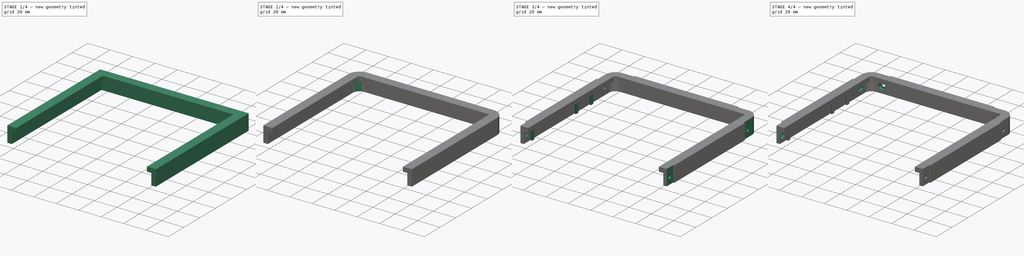
[diagram: build sequence overview — one tinted view per stage of 4, left to right]
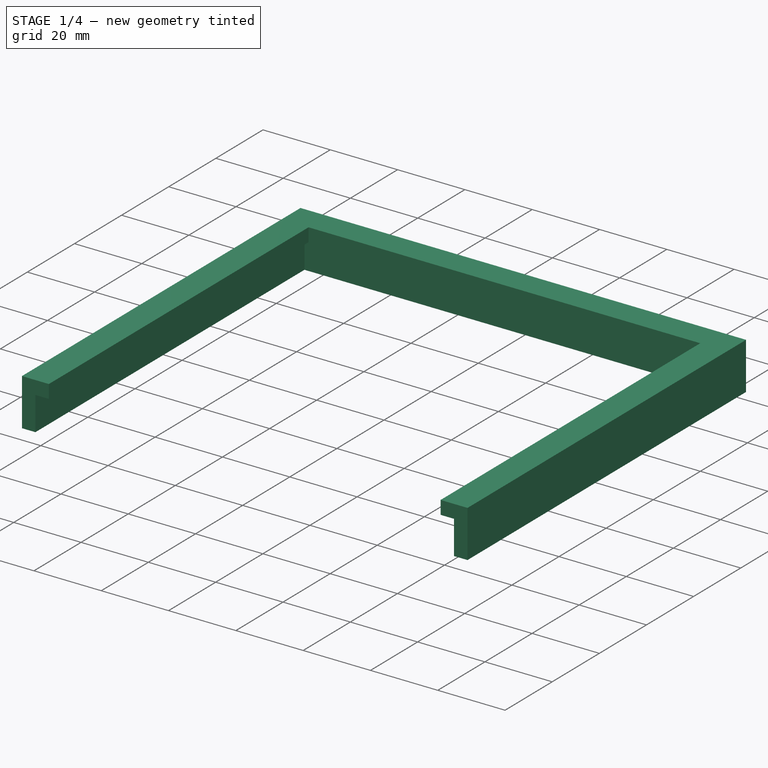
[diagram: stage 1 of 4 — iso view after this stage's code; geometry added in this stage tinted green]
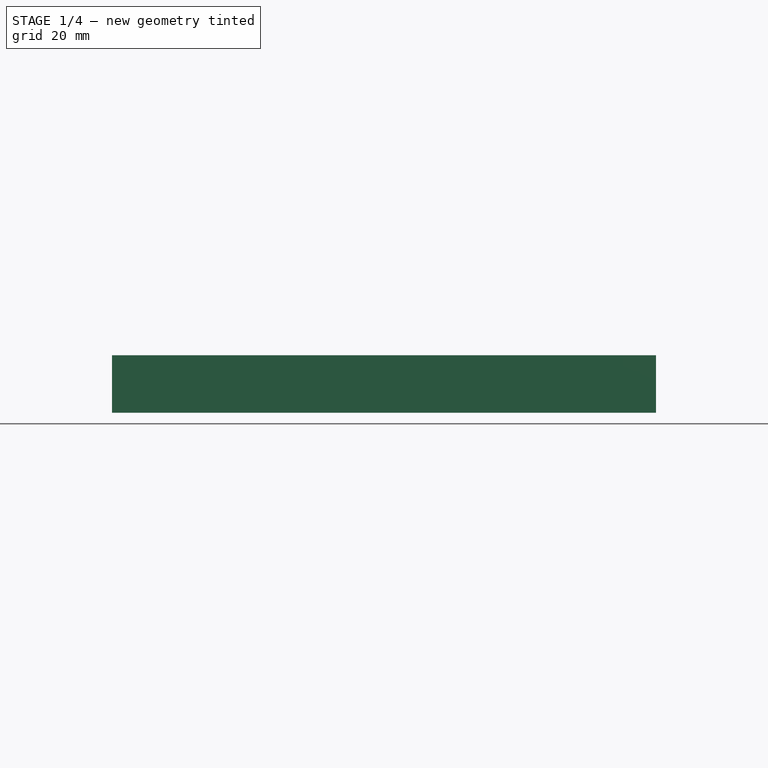
[diagram: stage 1 of 4 — front view after this stage's code; geometry added in this stage tinted green]
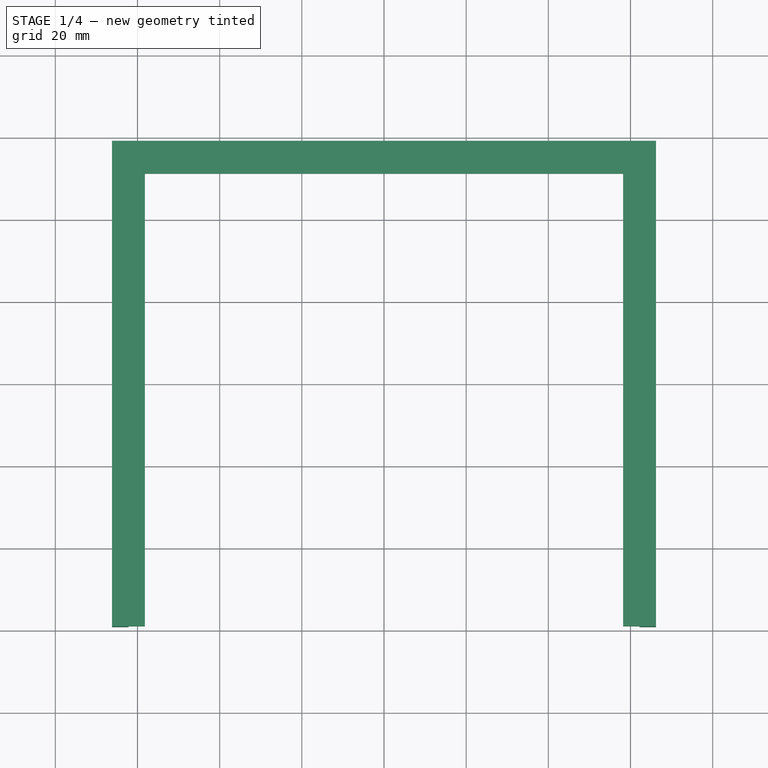
[diagram: stage 1 of 4 — top view after this stage's code; geometry added in this stage tinted green]
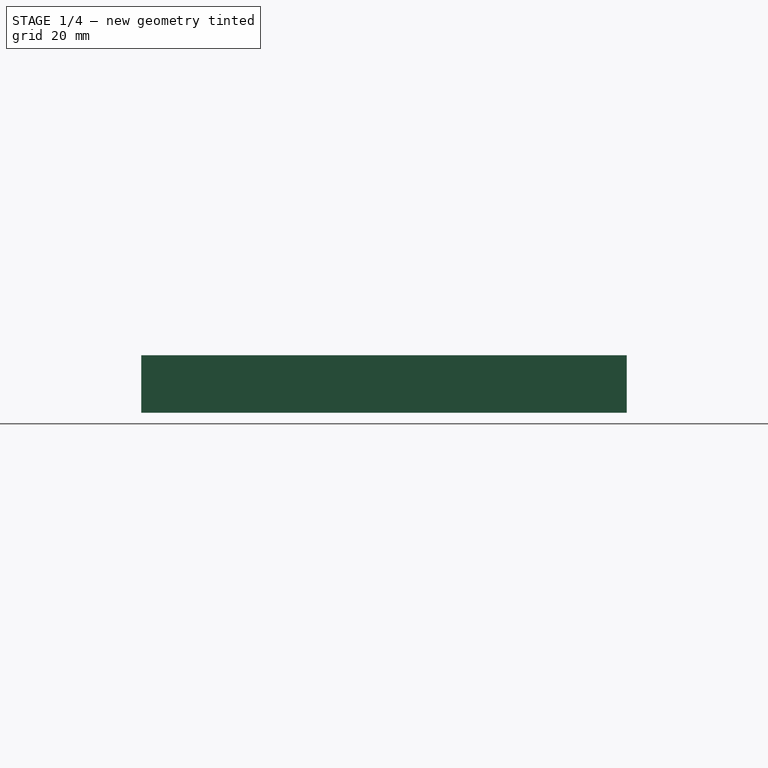
[diagram: stage 1 of 4 — right view after this stage's code; geometry added in this stage tinted green]
FCSTD DOCUMENT  (FreeCAD 0.18R16131 (Git))
Label: TopLockHalf
License: All rights reserved
LicenseURL: http://en.wikipedia.org/wiki/All_rights_reserved
objects: Sketcher::SketchObject×10, PartDesign::Pocket×8, PartDesign::Fillet×3, PartDesign::Pad×2, PartDesign::Body×1, App::Part×1
note: 34 computed .brp shape members not serialized (recipe doc carries the construction recipe); baked Part::Feature solids carry a one-line shape summary decoded from their .brp

FEATURE [Sketcher::SketchObject] Sketch
  MapMode = 5
  Support = -> [XY_Plane001]
  sketch-geometry (4):
    g0: LineSegment StartX=-66.2 StartY=59.1 StartZ=0 EndX=66.2 EndY=59.1 EndZ=0
    g1: LineSegment StartX=66.2 StartY=59.1 StartZ=0 EndX=66.2 EndY=-59.1 EndZ=0
    g2: LineSegment StartX=66.2 StartY=-59.1 StartZ=0 EndX=-66.2 EndY=-59.1 EndZ=0
    g3: LineSegment StartX=-66.2 StartY=-59.1 StartZ=0 EndX=-66.2 EndY=59.1 EndZ=0
  constraints (10):
    c: Coincident(g0,g1)
    c: Coincident(g1,g2)
    c: Coincident(g2,g3)
    c: Coincident(g3,g0)
    c: Horizontal(g2)
    c: Vertical(g1)
    c: Symmetric(g0,g2,g-1)
    c: Symmetric(g0,g0,g-2)
    c: Distance(g0) = 132.4
    c: Distance(g3) = 118.2
FEATURE [PartDesign::Pad] Pad
  Length = 4
  Length2 = 10
  Midplane = true
  Profile = -> Sketch
  Reversed = true
  Type = 4
FEATURE [Sketcher::SketchObject] Sketch001
  MapMode = 5
  Support = -> [XY_Plane001]
  sketch-geometry (4):
    g0: LineSegment StartX=-62.2 StartY=55.1 StartZ=0 EndX=62.2 EndY=55.1 EndZ=0
    g1: LineSegment StartX=62.2 StartY=55.1 StartZ=0 EndX=62.2 EndY=-59.1 EndZ=0
    g2: LineSegment StartX=62.2 StartY=-59.1 StartZ=0 EndX=-62.2 EndY=-59.1 EndZ=0
    g3: LineSegment StartX=-62.2 StartY=-59.1 StartZ=0 EndX=-62.2 EndY=55.1 EndZ=0
  constraints (11):
    c: Coincident(g0,g1)
    c: Coincident(g1,g2)
    c: Coincident(g2,g3)
    c: Coincident(g3,g0)
    c: Horizontal(g2)
    c: Vertical(g1)
    c: Vertical(g3)
    c: Symmetric(g0,g0,g-2)
    c: Distance(g0) = 124.4
    c: Distance(g3) = 114.2
    c: DistanceY(g-1,g2) = -59.1
FEATURE [PartDesign::Pocket] Pocket
  BaseFeature = -> Pad
  Length = 5
  Length2 = 100
  Profile = -> Sketch001
  Type = 1
FEATURE [Sketcher::SketchObject] Sketch002
  MapMode = 5
  Support = -> [XY_Plane001]
  sketch-geometry (4):
    g0: LineSegment StartX=-58.2 StartY=51.1 StartZ=0 EndX=58.2 EndY=51.1 EndZ=0
    g1: LineSegment StartX=58.2 StartY=51.1 StartZ=0 EndX=58.2 EndY=-59.1 EndZ=0
    g2: LineSegment StartX=58.2 StartY=-59.1 StartZ=0 EndX=-58.2 EndY=-59.1 EndZ=0
    g3: LineSegment StartX=-58.2 StartY=-59.1 StartZ=0 EndX=-58.2 EndY=51.1 EndZ=0
  constraints (11):
    c: Coincident(g0,g1)
    c: Coincident(g1,g2)
    c: Coincident(g2,g3)
    c: Coincident(g3,g0)
    c: Horizontal(g2)
    c: Vertical(g1)
    c: Vertical(g3)
    c: Symmetric(g0,g0,g-2)
    c: DistanceY(g-1,g2) = -59.1
    c: Distance(g0) = 116.4
    c: Distance(g3) = 110.2
FEATURE [PartDesign::Pocket] Pocket001
  BaseFeature = -> Pocket
  Length = 5
  Length2 = 100
  Profile = -> Sketch002
  Reversed = true
  Type = 0
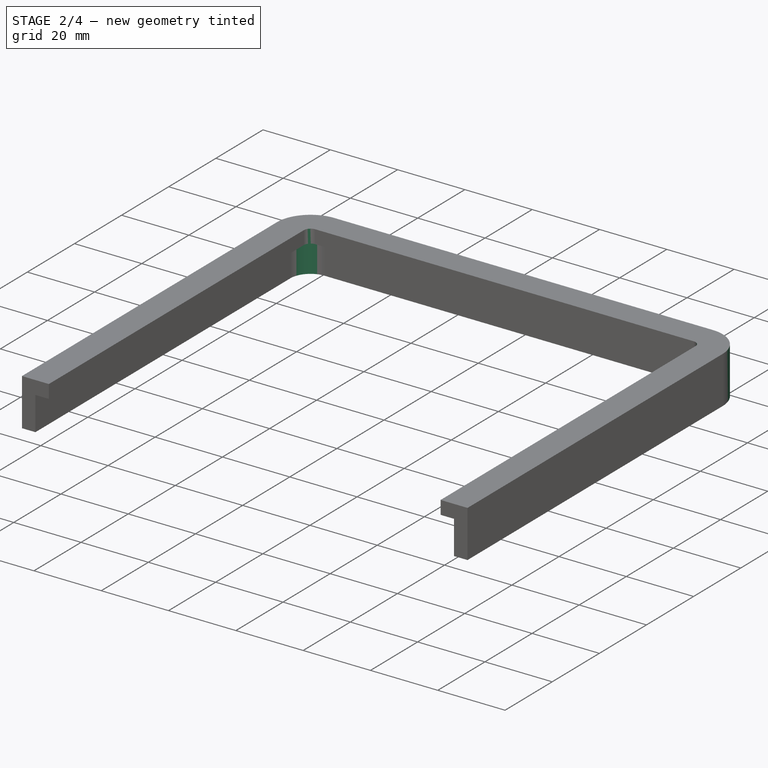
[diagram: stage 2 of 4 — iso view after this stage's code; geometry added in this stage tinted green]
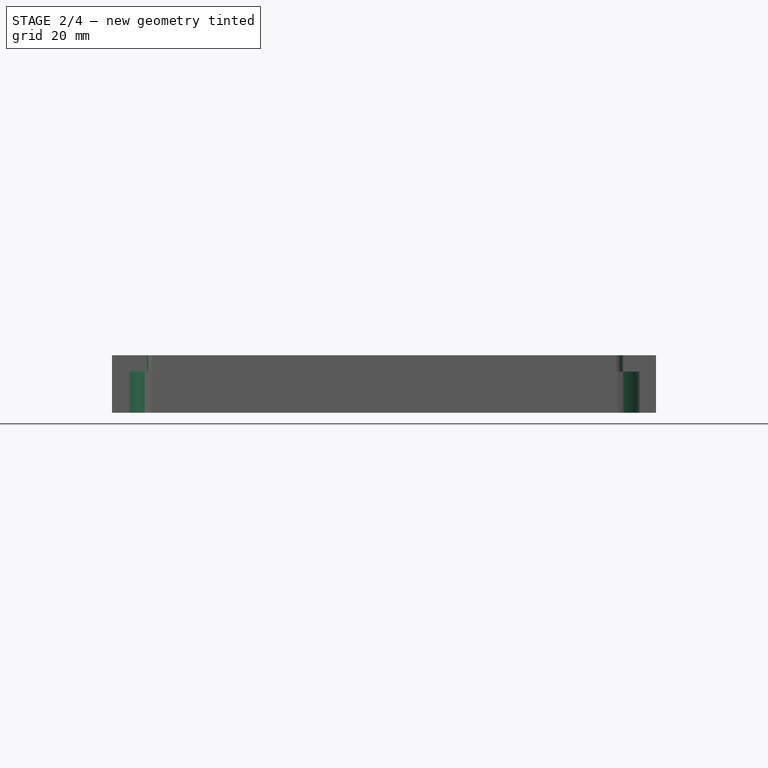
[diagram: stage 2 of 4 — front view after this stage's code; geometry added in this stage tinted green]
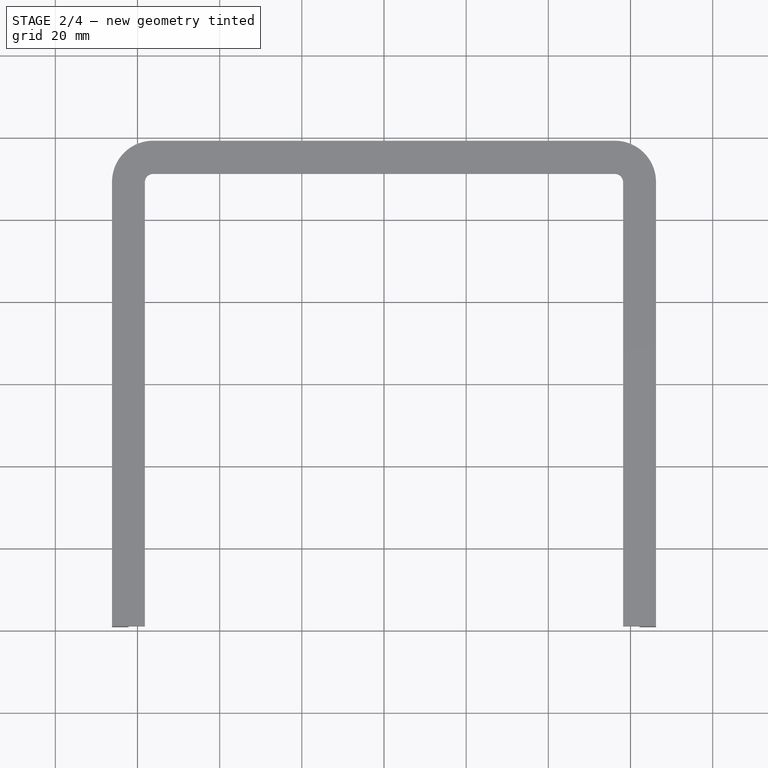
[diagram: stage 2 of 4 — top view after this stage's code; geometry added in this stage tinted green]
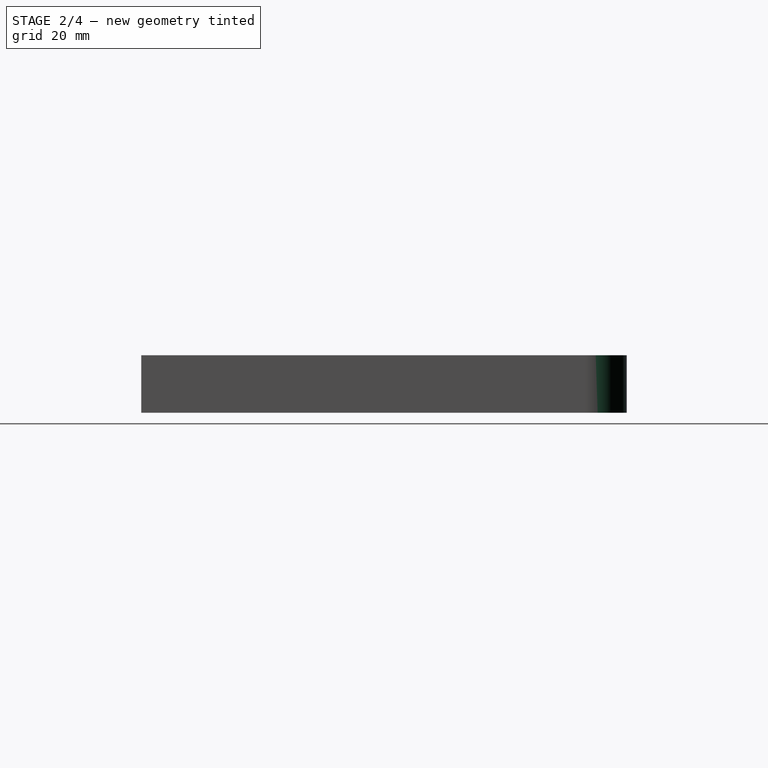
[diagram: stage 2 of 4 — right view after this stage's code; geometry added in this stage tinted green]
FEATURE [PartDesign::Fillet] Fillet
  Base = -> Pocket001 [Edge28,Edge30]
  BaseFeature = -> Pocket001
  Radius = 6
FEATURE [PartDesign::Fillet] Fillet001
  Base = -> Fillet [Edge22,Edge26]
  BaseFeature = -> Fillet
  Radius = 10
FEATURE [PartDesign::Fillet] Fillet002
  Base = -> Fillet001 [Edge45,Edge48]
  BaseFeature = -> Fillet001
  Radius = 2
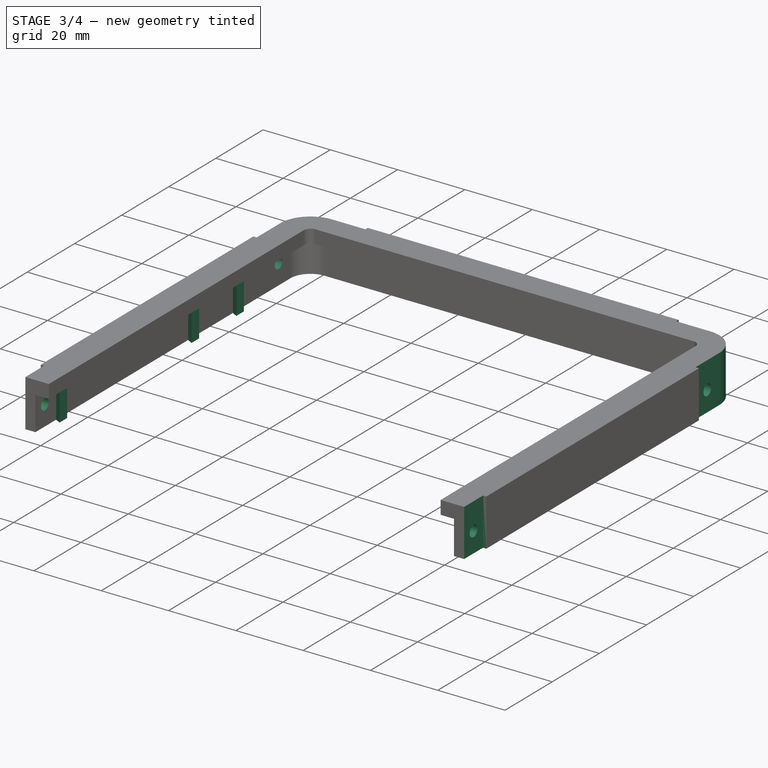
[diagram: stage 3 of 4 — iso view after this stage's code; geometry added in this stage tinted green]
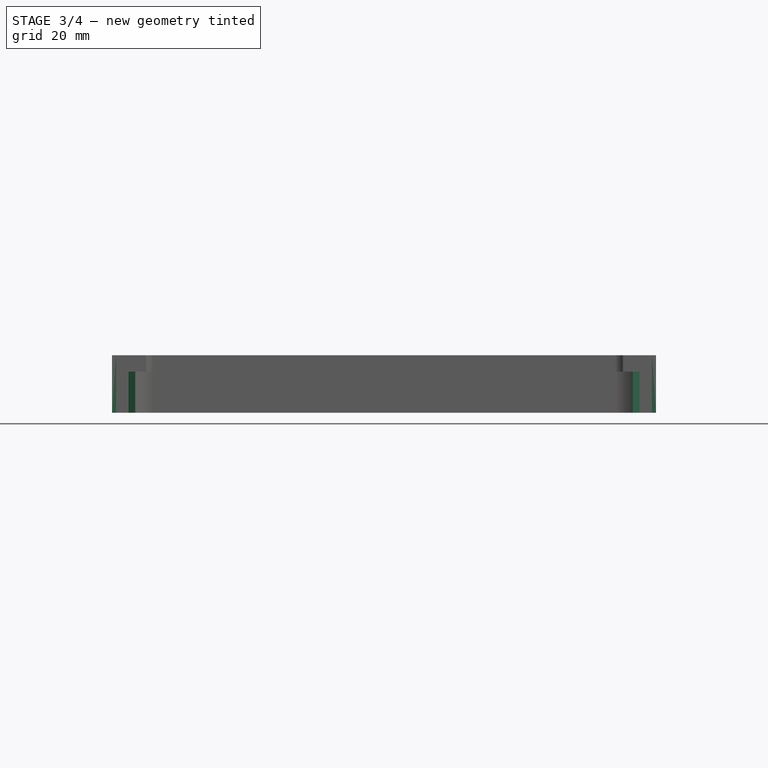
[diagram: stage 3 of 4 — front view after this stage's code; geometry added in this stage tinted green]
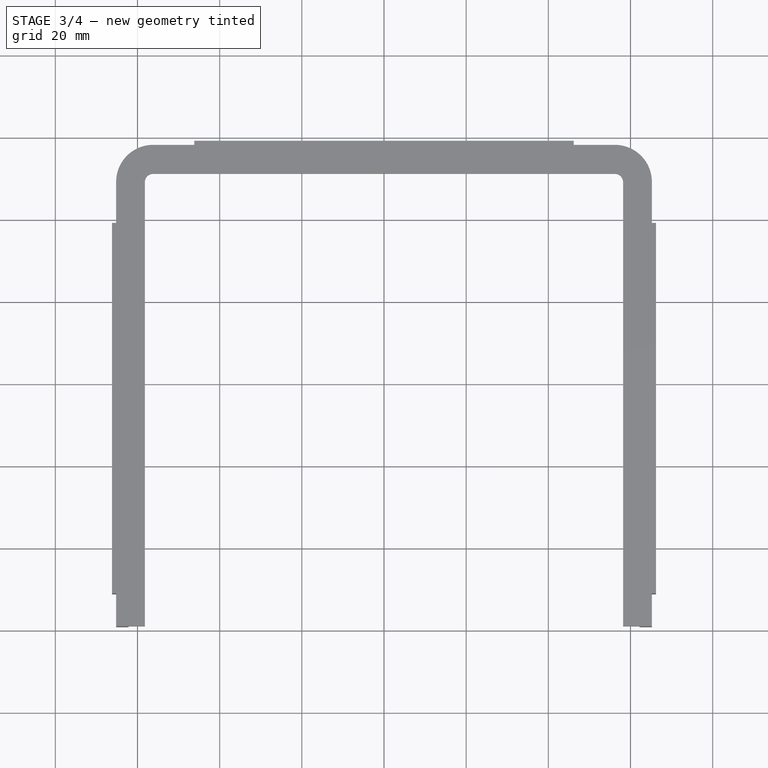
[diagram: stage 3 of 4 — top view after this stage's code; geometry added in this stage tinted green]
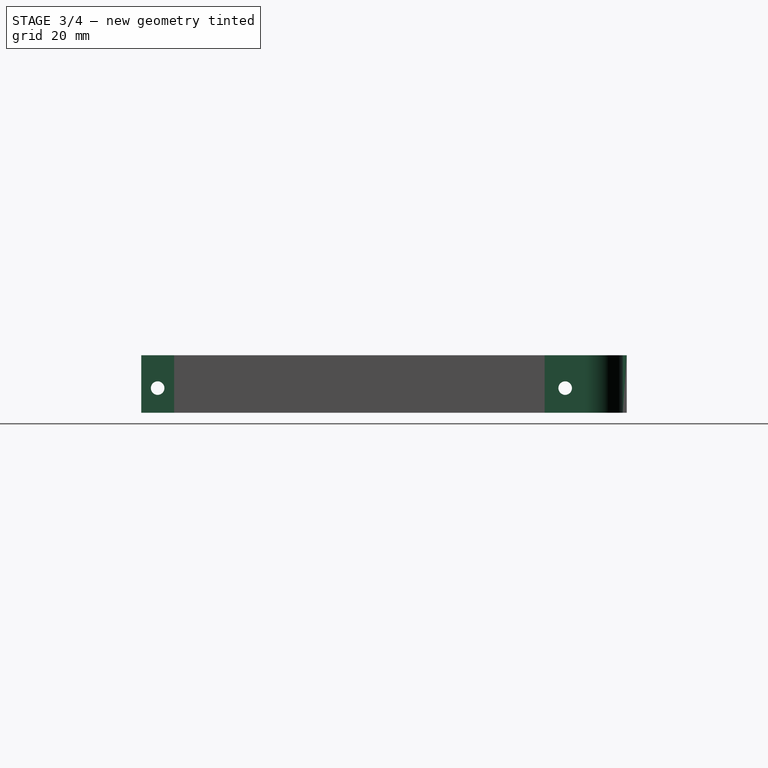
[diagram: stage 3 of 4 — right view after this stage's code; geometry added in this stage tinted green]
FEATURE [Sketcher::SketchObject] Sketch003
  MapMode = 5
  Support = -> [XY_Plane001]
  sketch-geometry (18):
    g0: LineSegment StartX=-65.2 StartY=39.1 StartZ=0 EndX=-65.2 EndY=49.1 EndZ=0
    g1: LineSegment StartX=-46.2 StartY=58.1 StartZ=0 EndX=-56.2 EndY=58.1 EndZ=0
    g2: ArcOfCircle CenterX=-56.2 CenterY=49.1 CenterZ=0 NormalX=0 NormalY=0 NormalZ=1 AngleXU=0 Radius=9 StartAngle=1.5708 EndAngle=3.14159
    g3: LineSegment [constr] StartX=-65.2 StartY=49.1 StartZ=0 EndX=-56.2 EndY=49.1 EndZ=0
    g4: LineSegment StartX=-65.2 StartY=39.1 StartZ=0 EndX=-66.2 EndY=39.1 EndZ=0
    g5: LineSegment StartX=-66.2 StartY=39.1 StartZ=0 EndX=-66.2 EndY=49.1 EndZ=0
    g6: LineSegment StartX=-46.2 StartY=58.1 StartZ=0 EndX=-46.2 EndY=59.1 EndZ=0
    g7: LineSegment StartX=-46.2 StartY=59.1 StartZ=0 EndX=-56.2 EndY=59.1 EndZ=0
    g8: ArcOfCircle CenterX=-56.2 CenterY=49.1 CenterZ=0 NormalX=0 NormalY=0 NormalZ=1 AngleXU=0 Radius=10 StartAngle=1.5708 EndAngle=3.14159
    g9: LineSegment StartX=65.2 StartY=39.1 StartZ=0 EndX=65.2 EndY=49.1 EndZ=0
    g10: LineSegment StartX=46.2 StartY=58.1 StartZ=0 EndX=56.2 EndY=58.1 EndZ=0
    g11: ArcOfCircle CenterX=56.2 CenterY=49.1 CenterZ=0 NormalX=0 NormalY=0 NormalZ=1 AngleXU=0 Radius=9 StartAngle=0 EndAngle=1.5708
    g12: LineSegment [constr] StartX=65.2 StartY=49.1 StartZ=0 EndX=56.2 EndY=49.1 EndZ=0
    g13: LineSegment StartX=65.2 StartY=39.1 StartZ=0 EndX=66.2 EndY=39.1 EndZ=0
    g14: LineSegment StartX=66.2 StartY=39.1 StartZ=0 EndX=66.2 EndY=49.1 EndZ=0
    g15: LineSegment StartX=46.2 StartY=58.1 StartZ=0 EndX=46.2 EndY=59.1 EndZ=0
    g16: LineSegment StartX=46.2 StartY=59.1 StartZ=0 EndX=56.2 EndY=59.1 EndZ=0
    g17: ArcOfCircle CenterX=56.2 CenterY=49.1 CenterZ=0 NormalX=0 NormalY=0 NormalZ=1 AngleXU=0 Radius=10 StartAngle=0 EndAngle=1.5708
  constraints (54):
    c: Horizontal(g1)
    c: Coincident(g2,g0)
    c: Coincident(g2,g1)
    c: Vertical(g0)
    c: Equal(g1,g0)
    c: Coincident(g3,g0)
    c: Coincident(g3,g2)
    c: Horizontal(g3)
    c: Angle(g2) = 1.5708
    c: Coincident(g4,g0)
    c: Horizontal(g4)
    c: Coincident(g5,g4)
    c: Vertical(g5)
    c: Coincident(g6,g1)
    c: Vertical(g6)
    c: Coincident(g7,g6)
    c: Horizontal(g7)
    c: Equal(g5,g7)
    c: Equal(g7,g1)
    c: Coincident(g8,g2)
    c: Coincident(g8,g5)
    c: Coincident(g8,g7)
    c: Distance(g4) = 1
    c: Radius(g8) = 10
    c: Distance(g7) = 10
    c: DistanceX(g-2,g2) = -56.2
    c: DistanceY(g-1,g2) = 49.1
    c: Horizontal(g10)
    c: Coincident(g11,g9)
    c: Coincident(g11,g10)
    c: Vertical(g9)
    c: Equal(g10,g9)
    c: Coincident(g12,g9)
    c: Coincident(g12,g11)
    c: Horizontal(g12)
    c: Angle(g11) = 1.5708
    c: Coincident(g13,g9)
    c: Horizontal(g13)
    c: Coincident(g14,g13)
    c: Vertical(g14)
    c: Coincident(g15,g10)
    c: Vertical(g15)
    c: Coincident(g16,g15)
    c: Horizontal(g16)
    c: Equal(g14,g16)
    c: Equal(g16,g10)
    c: Coincident(g17,g11)
    c: Coincident(g17,g14)
    c: Coincident(g17,g16)
    c: Distance(g13) = 1
    c: Radius(g17) = 10
    c: Distance(g16) = 10
    c: DistanceX(g-2,g11) = 56.2
    c: DistanceY(g-1,g11) = 49.1
FEATURE [PartDesign::Pocket] Pocket002
  BaseFeature = -> Fillet002
  Length = 5
  Length2 = 100
  Midplane = true
  Profile = -> Sketch003
  Type = 1
FEATURE [Sketcher::SketchObject] Sketch004
  MapMode = 5
  Support = -> [XY_Plane001]
  sketch-geometry (28):
    g0: LineSegment StartX=-62.2 StartY=24.7 StartZ=0 EndX=-62.2 EndY=26.1 EndZ=0
    g1: LineSegment StartX=-62.2 StartY=26.1 StartZ=0 EndX=-60.55 EndY=27 EndZ=0
    g2: LineSegment StartX=-60.55 StartY=27 StartZ=0 EndX=-60.55 EndY=23.8 EndZ=0
    g3: LineSegment StartX=-60.55 StartY=23.8 StartZ=0 EndX=-62.2 EndY=24.7 EndZ=0
    g4: LineSegment StartX=-62.2 StartY=5.7 StartZ=0 EndX=-60.55 EndY=4.8 EndZ=0
    g5: LineSegment StartX=-60.55 StartY=4.8 StartZ=0 EndX=-60.55 EndY=8 EndZ=0
    g6: LineSegment StartX=-60.55 StartY=8 StartZ=0 EndX=-62.2 EndY=7.1 EndZ=0
    g7: LineSegment StartX=-62.2 StartY=7.1 StartZ=0 EndX=-62.2 EndY=5.7 EndZ=0
    g8: LineSegment [constr] StartX=-62.2 StartY=7.1 StartZ=0 EndX=-62.2 EndY=24.7 EndZ=0
    g9: LineSegment StartX=-62.2 StartY=-50.3 StartZ=0 EndX=-60.55 EndY=-51.2 EndZ=0
    g10: LineSegment StartX=-60.55 StartY=-51.2 StartZ=0 EndX=-60.55 EndY=-48 EndZ=0
    g11: LineSegment StartX=-60.55 StartY=-48 StartZ=0 EndX=-62.2 EndY=-48.9 EndZ=0
    g12: LineSegment StartX=-62.2 StartY=-48.9 StartZ=0 EndX=-62.2 EndY=-50.3 EndZ=0
    g13: LineSegment [constr] StartX=-62.2 StartY=-48.9 StartZ=0 EndX=-62.2 EndY=5.7 EndZ=0
    g14: LineSegment StartX=62.2 StartY=24.7 StartZ=0 EndX=62.2 EndY=26.1 EndZ=0
    g15: LineSegment StartX=62.2 StartY=26.1 StartZ=0 EndX=60.55 EndY=27 EndZ=0
    g16: LineSegment StartX=60.55 StartY=27 StartZ=0 EndX=60.55 EndY=23.8 EndZ=0
    g17: LineSegment StartX=60.55 StartY=23.8 StartZ=0 EndX=62.2 EndY=24.7 EndZ=0
    g18: LineSegment StartX=62.2 StartY=5.7 StartZ=0 EndX=60.55 EndY=4.8 EndZ=0
    g19: LineSegment StartX=60.55 StartY=4.8 StartZ=0 EndX=60.55 EndY=8 EndZ=0
    g20: LineSegment StartX=60.55 StartY=8 StartZ=0 EndX=62.2 EndY=7.1 EndZ=0
    g21: LineSegment StartX=62.2 StartY=7.1 StartZ=0 EndX=62.2 EndY=5.7 EndZ=0
    g22: LineSegment [constr] StartX=62.2 StartY=7.1 StartZ=0 EndX=62.2 EndY=24.7 EndZ=0
    g23: LineSegment StartX=62.2 StartY=-50.3 StartZ=0 EndX=60.55 EndY=-51.2 EndZ=0
    g24: LineSegment StartX=60.55 StartY=-51.2 StartZ=0 EndX=60.55 EndY=-48 EndZ=0
    g25: LineSegment StartX=60.55 StartY=-48 StartZ=0 EndX=62.2 EndY=-48.9 EndZ=0
    g26: LineSegment StartX=62.2 StartY=-48.9 StartZ=0 EndX=62.2 EndY=-50.3 EndZ=0
    g27: LineSegment [constr] StartX=62.2 StartY=-48.9 StartZ=0 EndX=62.2 EndY=5.7 EndZ=0
  constraints (80):
    c: Coincident(g1,g0)
    c: Coincident(g2,g1)
    c: Vertical(g2)
    c: Coincident(g3,g2)
    c: Coincident(g3,g0)
    c: Vertical(g0)
    c: Equal(g1,g3)
    c: Distance(g0,g2) = 1.65
    c: Distance(g0) = 1.4
    c: Distance(g2) = 3.2
    c: DistanceX(g-2,g0) = -62.2
    c: DistanceY(g-1,g0) = 24.7
    c: Coincident(g4,g5)
    c: Coincident(g5,g6)
    c: Coincident(g6,g7)
    c: Coincident(g7,g4)
    c: Vertical(g5)
    c: Equal(g6,g4)
    c: Vertical(g7)
    c: Equal(g0,g7)
    c: Equal(g5,g2)
    c: Distance(g6,g5) = 1.65
    c: Coincident(g8,g6)
    c: Coincident(g8,g0)
    c: Distance(g8) = 17.6
    c: Vertical(g8)
    c: Coincident(g9,g10)
    c: Coincident(g10,g11)
    c: Coincident(g11,g12)
    c: Coincident(g12,g9)
    c: Vertical(g10)
    c: Vertical(g12)
    c: Equal(g11,g9)
    c: Distance(g11,g10) = 1.65
    c: Equal(g12,g7)
    c: Equal(g5,g10)
    c: Coincident(g13,g4)
    c: Coincident(g13,g11)
    c: Distance(g13) = 54.6
    c: Vertical(g13)
    c: Coincident(g15,g14)
    c: Coincident(g16,g15)
    c: Vertical(g16)
    c: Coincident(g17,g16)
    c: Coincident(g17,g14)
    c: Vertical(g14)
    c: Equal(g15,g17)
    c: Distance(g14,g16) = 1.65
    c: Distance(g14) = 1.4
    c: Distance(g16) = 3.2
    c: Coincident(g18,g19)
    c: Coincident(g19,g20)
    c: Coincident(g20,g21)
    c: Coincident(g21,g18)
    c: Vertical(g19)
    c: Equal(g20,g18)
    c: Vertical(g21)
    c: Equal(g14,g21)
    c: Equal(g19,g16)
    c: Distance(g20,g19) = 1.65
    c: Coincident(g22,g20)
    c: Coincident(g22,g14)
    c: Distance(g22) = 17.6
    c: Vertical(g22)
    c: Coincident(g23,g24)
    c: Coincident(g24,g25)
    c: Coincident(g25,g26)
    c: Coincident(g26,g23)
    c: Vertical(g24)
    c: Vertical(g26)
    c: Equal(g25,g23)
    c: Distance(g25,g24) = 1.65
    c: Equal(g26,g21)
    c: Equal(g19,g24)
    c: Coincident(g27,g18)
    c: Coincident(g27,g25)
    c: Distance(g27) = 54.6
    c: Vertical(g27)
    c: DistanceX(g-2,g14) = 62.2
    c: DistanceY(g-1,g14) = 24.7
FEATURE [PartDesign::Pad] Pad001
  BaseFeature = -> Pocket002
  Length = 10
  Length2 = 100
  Profile = -> Sketch004
  Reversed = true
  Type = 0
FEATURE [Sketcher::SketchObject] Sketch005
  MapMode = 5
  Support = -> [XY_Plane001]
  sketch-geometry (8):
    g0: LineSegment StartX=-65.2 StartY=-59.1 StartZ=0 EndX=-66.2 EndY=-59.1 EndZ=0
    g1: LineSegment StartX=-66.2 StartY=-59.1 StartZ=0 EndX=-66.2 EndY=-51.1 EndZ=0
    g2: LineSegment StartX=-66.2 StartY=-51.1 StartZ=0 EndX=-65.2 EndY=-51.1 EndZ=0
    g3: LineSegment StartX=-65.2 StartY=-51.1 StartZ=0 EndX=-65.2 EndY=-59.1 EndZ=0
    g4: LineSegment StartX=65.2 StartY=-59.1 StartZ=0 EndX=66.2 EndY=-59.1 EndZ=0
    g5: LineSegment StartX=66.2 StartY=-59.1 StartZ=0 EndX=66.2 EndY=-51.1 EndZ=0
    g6: LineSegment StartX=66.2 StartY=-51.1 StartZ=0 EndX=65.2 EndY=-51.1 EndZ=0
    g7: LineSegment StartX=65.2 StartY=-51.1 StartZ=0 EndX=65.2 EndY=-59.1 EndZ=0
  constraints (24):
    c: Coincident(g0,g1)
    c: Coincident(g1,g2)
    c: Coincident(g2,g3)
    c: Coincident(g3,g0)
    c: Horizontal(g0)
    c: Horizontal(g2)
    c: Vertical(g1)
    c: Vertical(g3)
    c: Distance(g0) = 1
    c: Distance(g3) = 8
    c: DistanceX(g-2,g0) = -66.2
    c: DistanceY(g-1,g0) = -59.1
    c: Coincident(g4,g5)
    c: Coincident(g5,g6)
    c: Coincident(g6,g7)
    c: Coincident(g7,g4)
    c: Horizontal(g4)
    c: Horizontal(g6)
    c: Vertical(g5)
    c: Vertical(g7)
    c: Distance(g4) = 1
    c: Distance(g7) = 8
    c: DistanceX(g-2,g4) = 66.2
    c: DistanceY(g-1,g4) = -59.1
FEATURE [PartDesign::Pocket] Pocket003
  BaseFeature = -> Pad001
  Length = 5
  Length2 = 100
  Midplane = true
  Profile = -> Sketch005
  Type = 1
FEATURE [Sketcher::SketchObject] Sketch006
  MapMode = 5
  Placement = pos=(0,0,0) rot=(0.57735,0.57735,0.57735;2.0944rad)
  Support = -> [YZ_Plane001]
  sketch-geometry (2):
    g0: Circle CenterX=-55.1 CenterY=-4 CenterZ=0 NormalX=0 NormalY=0 NormalZ=1 AngleXU=0 Radius=1.65
    g1: Circle CenterX=44.1 CenterY=-4 CenterZ=0 NormalX=0 NormalY=0 NormalZ=1 AngleXU=0 Radius=1.65
  constraints (6):
    c: Equal(g1,g0)
    c: Radius(g0) = 1.65
    c: DistanceX(g-2,g1) = 44.1
    c: Distance(g1,g-1) = 4
    c: DistanceY(g-1,g0) = -4
    c: DistanceX(g-2,g0) = -55.1
FEATURE [PartDesign::Pocket] Pocket004
  BaseFeature = -> Pocket003
  Length = 5
  Length2 = 100
  Midplane = true
  Profile = -> Sketch006
  Type = 1
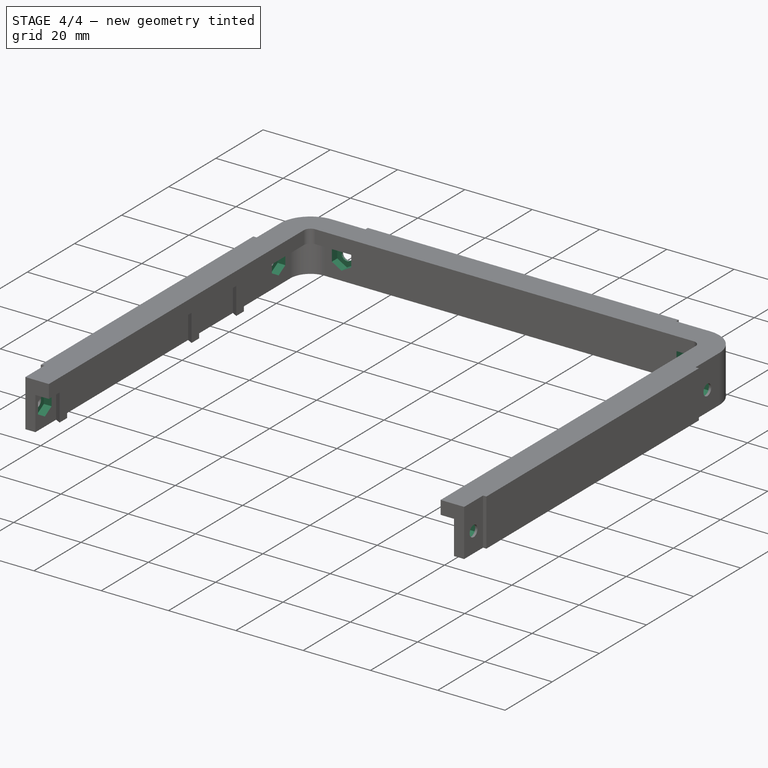
[diagram: stage 4 of 4 — iso view after this stage's code; geometry added in this stage tinted green]
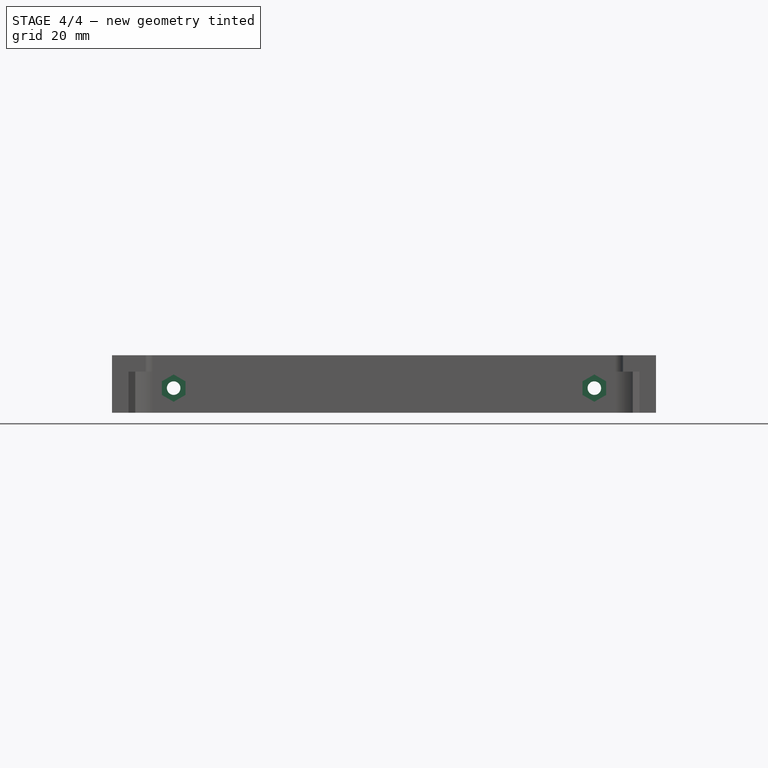
[diagram: stage 4 of 4 — front view after this stage's code; geometry added in this stage tinted green]
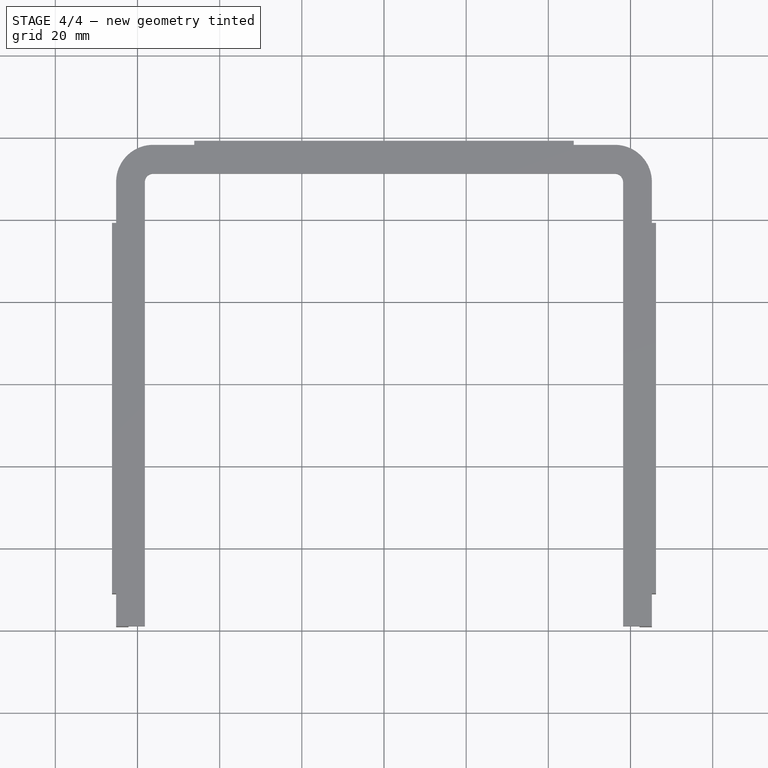
[diagram: stage 4 of 4 — top view after this stage's code; geometry added in this stage tinted green]
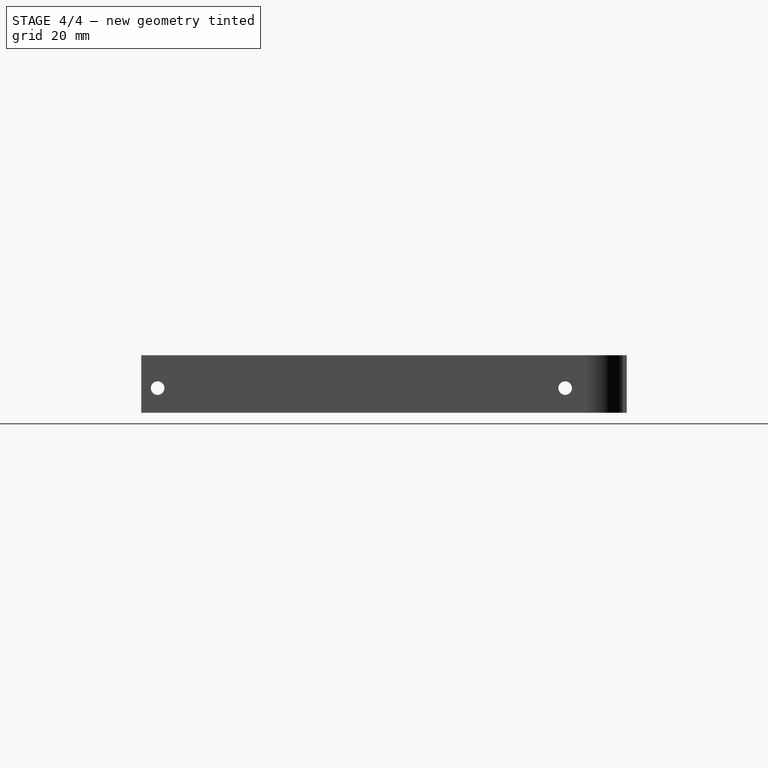
[diagram: stage 4 of 4 — right view after this stage's code; geometry added in this stage tinted green]
FEATURE [Sketcher::SketchObject] Sketch007
  ExternalGeometry = -> [Sketch006]
  MapMode = 5
  Placement = pos=(0,0,0) rot=(0.57735,0.57735,0.57735;2.0944rad)
  Support = -> [YZ_Plane001]
  sketch-geometry (14):
    g0: LineSegment StartX=-57.975 StartY=-5.65988 StartZ=0 EndX=-55.1 EndY=-7.31976 EndZ=0
    g1: LineSegment StartX=-55.1 StartY=-7.31976 StartZ=0 EndX=-52.225 EndY=-5.65988 EndZ=0
    g2: LineSegment StartX=-52.225 StartY=-5.65988 StartZ=0 EndX=-52.225 EndY=-2.34012 EndZ=0
    g3: LineSegment StartX=-52.225 StartY=-2.34012 StartZ=0 EndX=-55.1 EndY=-0.680236 EndZ=0
    g4: LineSegment StartX=-55.1 StartY=-0.680236 StartZ=0 EndX=-57.975 EndY=-2.34012 EndZ=0
    g5: LineSegment StartX=-57.975 StartY=-2.34012 StartZ=0 EndX=-57.975 EndY=-5.65988 EndZ=0
    g6: Circle [constr] CenterX=-55.1 CenterY=-4 CenterZ=0 NormalX=0 NormalY=0 NormalZ=1 AngleXU=0 Radius=3.31976
    g7: LineSegment StartX=44.1 StartY=-7.31976 StartZ=0 EndX=46.975 EndY=-5.65988 EndZ=0
    g8: LineSegment StartX=46.975 StartY=-5.65988 StartZ=0 EndX=46.975 EndY=-2.34012 EndZ=0
    g9: LineSegment StartX=46.975 StartY=-2.34012 StartZ=0 EndX=44.1 EndY=-0.680236 EndZ=0
    g10: LineSegment StartX=44.1 StartY=-0.680236 StartZ=0 EndX=41.225 EndY=-2.34012 EndZ=0
    g11: LineSegment StartX=41.225 StartY=-2.34012 StartZ=0 EndX=41.225 EndY=-5.65988 EndZ=0
    g12: LineSegment StartX=41.225 StartY=-5.65988 StartZ=0 EndX=44.1 EndY=-7.31976 EndZ=0
    g13: Circle [constr] CenterX=44.1 CenterY=-4 CenterZ=0 NormalX=0 NormalY=0 NormalZ=1 AngleXU=0 Radius=3.31976
  constraints (32):
    c: Coincident(g0,g1)
    c: Coincident(g1,g2)
    c: Coincident(g2,g3)
    c: Coincident(g3,g4)
    c: Coincident(g4,g5)
    c: Coincident(g5,g0)
    c: Equal(g0, g1-g5) x5
    c: PointOnObject(g0,g6)
    c: PointOnObject(g1,g6)
    c: PointOnObject(g2,g6)
    c: PointOnObject(g3,g6)
    c: PointOnObject(g4,g6)
    c: PointOnObject(g5,g6)
    c: Coincident(g6,g-3)
    c: Vertical(g2)
    c: Coincident(g7,g8)
    c: Coincident(g8,g9)
    c: Coincident(g9,g10)
    c: Coincident(g10,g11)
    c: Coincident(g11,g12)
    c: Coincident(g12,g7)
    c: Equal(g7, g8-g12) x5
    c: PointOnObject(g7,g13)
    c: PointOnObject(g8,g13)
    c: PointOnObject(g9,g13)
    c: PointOnObject(g10,g13)
    c: PointOnObject(g11,g13)
    c: PointOnObject(g12,g13)
    c: Coincident(g13,g-4)
    c: Vertical(g8)
    c: Distance(g10,g8) = 5.75
    c: Equal(g11,g2)
FEATURE [PartDesign::Pocket] Pocket005
  BaseFeature = -> Pocket004
  Length = 129
  Length2 = 100
  Midplane = true
  Profile = -> Sketch007
  Type = 0
FEATURE [Sketcher::SketchObject] Sketch008
  MapMode = 5
  Placement = pos=(0,0,0) rot=(1,0,0;1.5708rad)
  Support = -> [XZ_Plane001]
  sketch-geometry (2):
    g0: Circle CenterX=-51.2 CenterY=-4 CenterZ=0 NormalX=0 NormalY=0 NormalZ=1 AngleXU=0 Radius=1.65
    g1: Circle CenterX=51.2 CenterY=-4 CenterZ=0 NormalX=0 NormalY=0 NormalZ=1 AngleXU=0 Radius=1.65
  constraints (5):
    c: Symmetric(g1,g0,g-2)
    c: DistanceY(g-1,g0) = -4
    c: Equal(g0,g1)
    c: Radius(g0) = 1.65
    c: DistanceX(g-2,g0) = -51.2
FEATURE [PartDesign::Pocket] Pocket006
  BaseFeature = -> Pocket005
  Length = 5
  Length2 = 100
  Midplane = true
  Profile = -> Sketch008
  Type = 1
FEATURE [Sketcher::SketchObject] Sketch009
  ExternalGeometry = -> [Sketch008]
  MapMode = 5
  Placement = pos=(0,0,0) rot=(1,0,0;1.5708rad)
  Support = -> [XZ_Plane001]
  sketch-geometry (14):
    g0: LineSegment StartX=-51.2 StartY=-7.31976 StartZ=0 EndX=-48.325 EndY=-5.65988 EndZ=0
    g1: LineSegment StartX=-48.325 StartY=-5.65988 StartZ=0 EndX=-48.325 EndY=-2.34012 EndZ=0
    g2: LineSegment StartX=-48.325 StartY=-2.34012 StartZ=0 EndX=-51.2 EndY=-0.680236 EndZ=0
    g3: LineSegment StartX=-51.2 StartY=-0.680236 StartZ=0 EndX=-54.075 EndY=-2.34012 EndZ=0
    g4: LineSegment StartX=-54.075 StartY=-2.34012 StartZ=0 EndX=-54.075 EndY=-5.65988 EndZ=0
    g5: LineSegment StartX=-54.075 StartY=-5.65988 StartZ=0 EndX=-51.2 EndY=-7.31976 EndZ=0
    g6: Circle [constr] CenterX=-51.2 CenterY=-4 CenterZ=0 NormalX=0 NormalY=0 NormalZ=1 AngleXU=0 Radius=3.31976
    g7: LineSegment StartX=51.2 StartY=-7.31976 StartZ=0 EndX=54.075 EndY=-5.65988 EndZ=0
    g8: LineSegment StartX=54.075 StartY=-5.65988 StartZ=0 EndX=54.075 EndY=-2.34012 EndZ=0
    g9: LineSegment StartX=54.075 StartY=-2.34012 StartZ=0 EndX=51.2 EndY=-0.680236 EndZ=0
    g10: LineSegment StartX=51.2 StartY=-0.680236 StartZ=0 EndX=48.325 EndY=-2.34012 EndZ=0
    g11: LineSegment StartX=48.325 StartY=-2.34012 StartZ=0 EndX=48.325 EndY=-5.65988 EndZ=0
    g12: LineSegment StartX=48.325 StartY=-5.65988 StartZ=0 EndX=51.2 EndY=-7.31976 EndZ=0
    g13: Circle [constr] CenterX=51.2 CenterY=-4 CenterZ=0 NormalX=0 NormalY=0 NormalZ=1 AngleXU=0 Radius=3.31976
  constraints (32):
    c: Coincident(g0,g1)
    c: Coincident(g1,g2)
    c: Coincident(g2,g3)
    c: Coincident(g3,g4)
    c: Coincident(g4,g5)
    c: Coincident(g5,g0)
    c: Equal(g0, g1-g5) x5
    c: PointOnObject(g0,g6)
    c: PointOnObject(g1,g6)
    c: PointOnObject(g2,g6)
    c: PointOnObject(g3,g6)
    c: PointOnObject(g4,g6)
    c: PointOnObject(g5,g6)
    c: Coincident(g6,g-3)
    c: Coincident(g7,g8)
    c: Coincident(g8,g9)
    c: Coincident(g9,g10)
    c: Coincident(g10,g11)
    c: Coincident(g11,g12)
    c: Coincident(g12,g7)
    c: Equal(g7, g8-g12) x5
    c: PointOnObject(g7,g13)
    c: PointOnObject(g8,g13)
    c: PointOnObject(g9,g13)
    c: PointOnObject(g10,g13)
    c: PointOnObject(g11,g13)
    c: PointOnObject(g12,g13)
    c: Coincident(g13,g-4)
    c: Distance(g3,g1) = 5.75
    c: Vertical(g4)
    c: Vertical(g11)
    c: Equal(g4,g11)
FEATURE [PartDesign::Pocket] Pocket007
  BaseFeature = -> Pocket006
  Length = 57.4
  Length2 = 100
  Profile = -> Sketch009
  Type = 0
FEATURE [PartDesign::Body] Body
  Group = -> [Sketch,Pad,Sketch001,Pocket,Sketch002,Pocket001,Fillet,Fillet001,Fillet002,Sketch003,Pocket002,Sketch004,Pad001,Sketch005,Pocket003,Sketch006,Pocket004,Sketch007,Pocket005,Sketch008,Pocket006,Sketch009,Pocket007]
  Origin = -> Origin001
  Tip = -> Pocket007
FEATURE [App::Part] Part
  Group = -> [Body]
  Origin = -> Origin
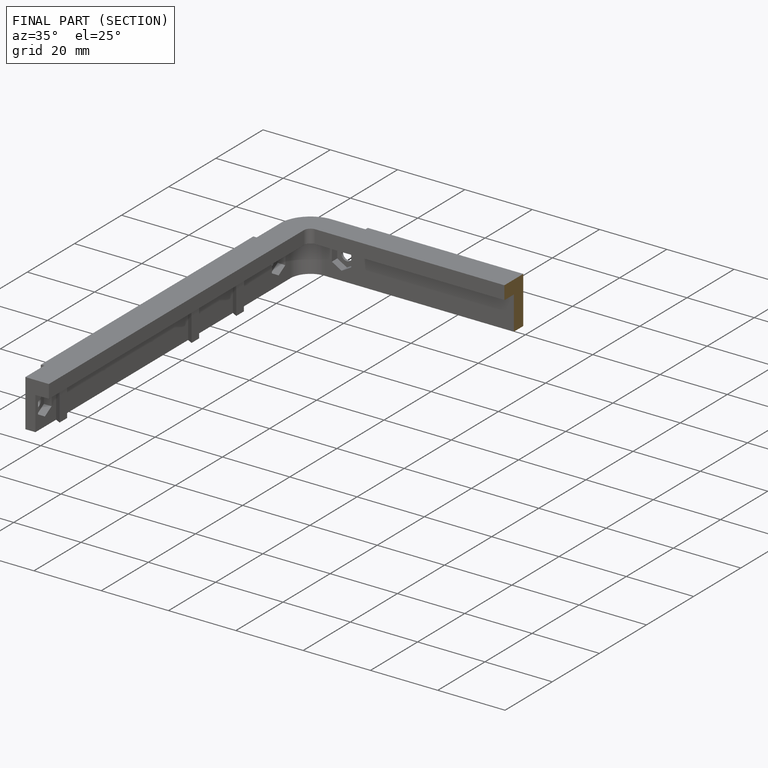
[diagram: finished part — half-section view (interior)]
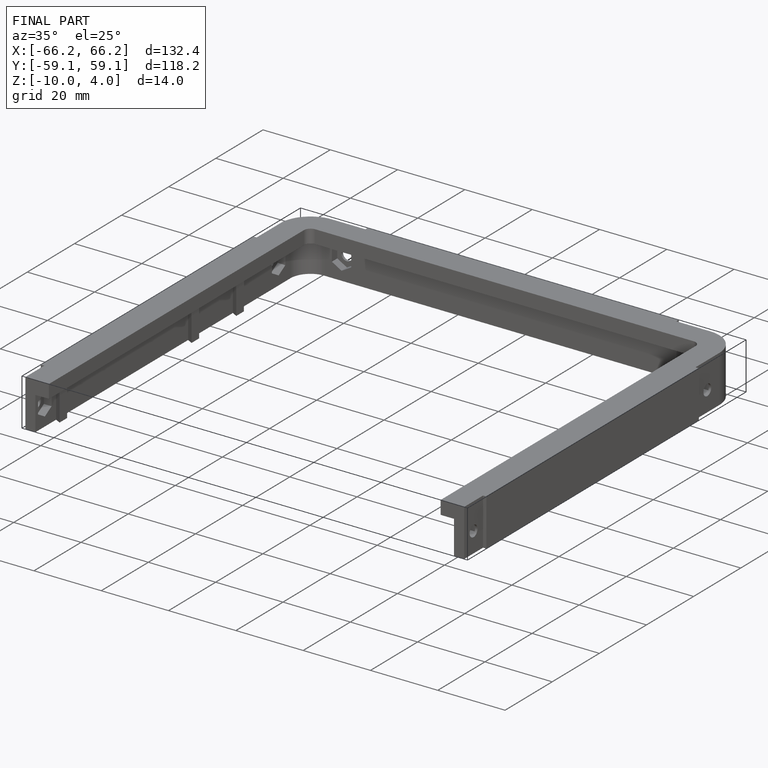
[diagram: finished part — iso view with bounding-box wireframe]
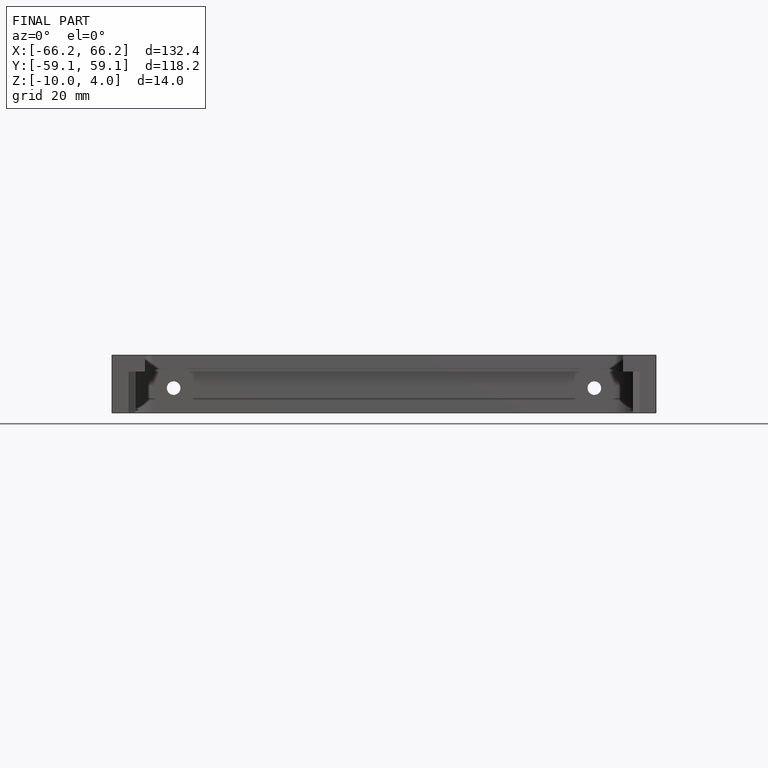
[diagram: finished part — front view with bounding-box wireframe]
